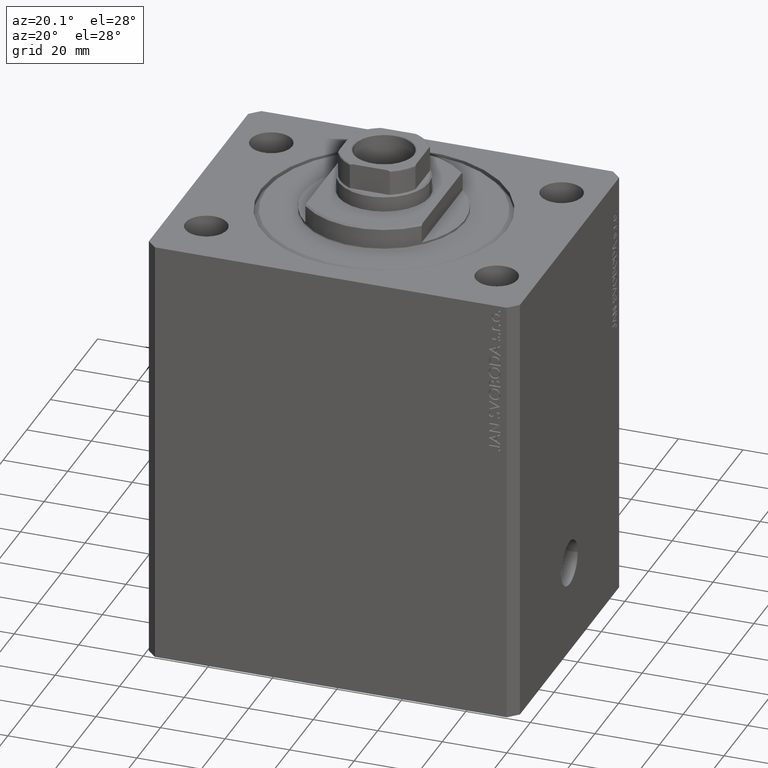
[diagram: clean part render]
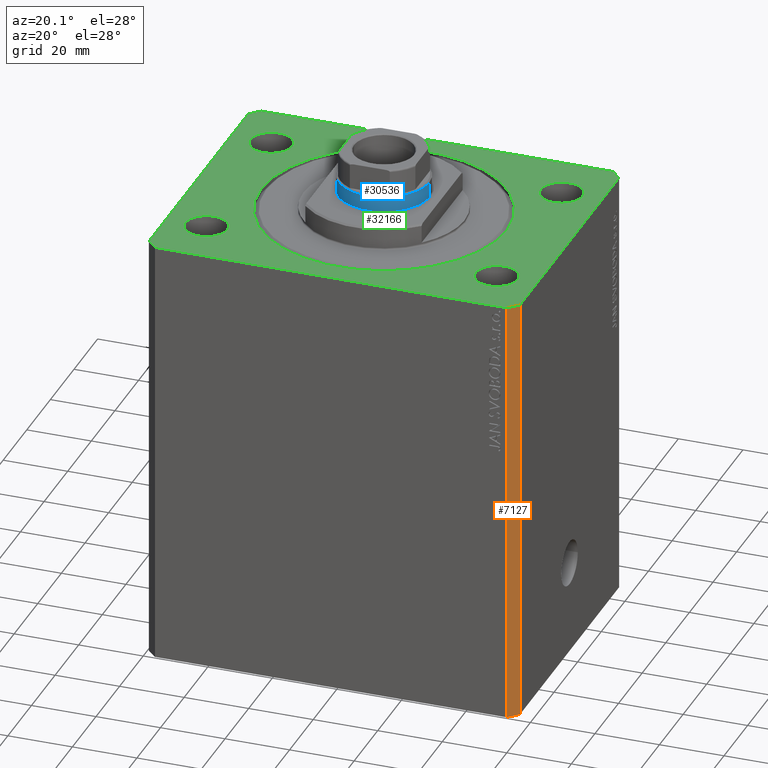
[diagram: same view with three faces highlighted in distinct colors, each labeled with its STEP entity id]
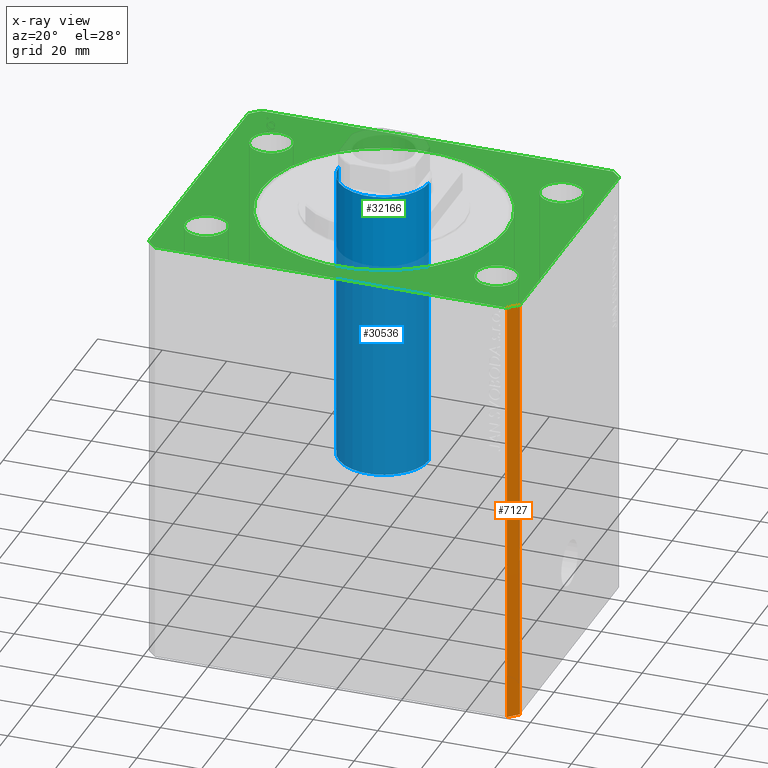
[diagram: x-ray of the same camera — body ghosted, the three highlighted faces saturated]
A machine part, auxiliary view with three faces highlighted in distinct colors.
The next image is the same camera in x-ray (body ghosted, the three faces saturated) — at least one of them is partly hidden behind the body in this view.
Their STEP definitions:

[orange] entity #7127 — the highlighted planar face has unit normal (0.7071, -0.7071, 0).
#545 = ORIENTED_EDGE ( 'NONE', *, *, #29886, .F. ) ;
#1830 = CARTESIAN_POINT ( 'NONE',  ( 54.50000000000000711, -44.99999999999998579, 0.000000000000000000 ) ) ;
#2478 = CARTESIAN_POINT ( 'NONE',  ( 57.50000000000000711, -41.99999999999998579, 0.000000000000000000 ) ) ;
#5490 = CARTESIAN_POINT ( 'NONE',  ( 54.50000000000000711, -44.99999999999998579, 0.000000000000000000 ) ) ;
#7127 = ADVANCED_FACE ( 'NONE', ( #28683 ), #17246, .T. ) ;
#7688 = CARTESIAN_POINT ( 'NONE',  ( 54.50000000000000711, -44.99999999999998579, -135.0000000000000000 ) ) ;
#8271 = CARTESIAN_POINT ( 'NONE',  ( 54.50000000000000711, -44.99999999999998579, -135.0000000000000000 ) ) ;
#11741 = LINE ( 'NONE', #33153, #19541 ) ;
#14644 = EDGE_LOOP ( 'NONE', ( #545, #35912, #28939, #43916 ) ) ;
#16948 = VECTOR ( 'NONE', #19119, 1000.000000000000000 ) ;
#17246 = PLANE ( 'NONE',  #32979 ) ;
#19119 = DIRECTION ( 'NONE',  ( 0.000000000000000000, 0.000000000000000000, 1.000000000000000000 ) ) ;
#19541 = VECTOR ( 'NONE', #39922, 1000.000000000000000 ) ;
#20402 = DIRECTION ( 'NONE',  ( 0.7071067811865483499, 0.7071067811865466846, 0.000000000000000000 ) ) ;
#20685 = CARTESIAN_POINT ( 'NONE',  ( 57.50000000000000711, -41.99999999999998579, -135.0000000000000000 ) ) ;
#24068 = EDGE_CURVE ( 'NONE', #36524, #34602, #24073, .T. ) ;
#24073 = LINE ( 'NONE', #20685, #32510 ) ;
#24397 = CARTESIAN_POINT ( 'NONE',  ( 57.50000000000000711, -41.99999999999998579, -135.0000000000000000 ) ) ;
#25963 = DIRECTION ( 'NONE',  ( 0.7071067811865483499, 0.7071067811865466846, 0.000000000000000000 ) ) ;
#26188 = LINE ( 'NONE', #1830, #39752 ) ;
#27019 = EDGE_CURVE ( 'NONE', #34727, #36524, #11741, .T. ) ;
#28683 = FACE_OUTER_BOUND ( 'NONE', #14644, .T. ) ;
#28939 = ORIENTED_EDGE ( 'NONE', *, *, #27019, .T. ) ;
#29886 = EDGE_CURVE ( 'NONE', #31287, #34602, #26188, .T. ) ;
#31046 = DIRECTION ( 'NONE',  ( 0.000000000000000000, 0.000000000000000000, 1.000000000000000000 ) ) ;
#31287 = VERTEX_POINT ( 'NONE', #5490 ) ;
#32401 = LINE ( 'NONE', #8271, #16948 ) ;
#32510 = VECTOR ( 'NONE', #31046, 1000.000000000000000 ) ;
#32979 = AXIS2_PLACEMENT_3D ( 'NONE', #7688, #42422, #20402 ) ;
#33153 = CARTESIAN_POINT ( 'NONE',  ( 54.50000000000000711, -44.99999999999998579, -135.0000000000000000 ) ) ;
#34602 = VERTEX_POINT ( 'NONE', #2478 ) ;
#34727 = VERTEX_POINT ( 'NONE', #43528 ) ;
#35912 = ORIENTED_EDGE ( 'NONE', *, *, #39696, .F. ) ;
#36524 = VERTEX_POINT ( 'NONE', #24397 ) ;
#39696 = EDGE_CURVE ( 'NONE', #34727, #31287, #32401, .T. ) ;
#39752 = VECTOR ( 'NONE', #25963, 1000.000000000000000 ) ;
#39922 = DIRECTION ( 'NONE',  ( 0.7071067811865483499, 0.7071067811865466846, 0.000000000000000000 ) ) ;
#42422 = DIRECTION ( 'NONE',  ( 0.7071067811865466846, -0.7071067811865483499, 0.000000000000000000 ) ) ;
#43528 = CARTESIAN_POINT ( 'NONE',  ( 54.50000000000000711, -44.99999999999998579, -135.0000000000000000 ) ) ;
#43916 = ORIENTED_EDGE ( 'NONE', *, *, #24068, .T. ) ;

[blue] entity #30536 — the highlighted cylindrical surface (partial cylindrical patch) has radius 14 mm, axis along (-0, -0, -1).
#970 = LINE ( 'NONE', #24439, #41708 ) ;
#1602 = AXIS2_PLACEMENT_3D ( 'NONE', #33645, #16522, #19686 ) ;
#2326 = EDGE_CURVE ( 'NONE', #24805, #34629, #15739, .T. ) ;
#4652 = ORIENTED_EDGE ( 'NONE', *, *, #11388, .T. ) ;
#5374 = ORIENTED_EDGE ( 'NONE', *, *, #11612, .F. ) ;
#6214 = VECTOR ( 'NONE', #43896, 1000.000000000000000 ) ;
#6635 = CIRCLE ( 'NONE', #24677, 14.00000000000000000 ) ;
#7336 = CARTESIAN_POINT ( 'NONE',  ( 0.000000000000000000, 0.000000000000000000, 37.00000000000000000 ) ) ;
#8855 = EDGE_LOOP ( 'NONE', ( #5374, #21610, #37917, #4652 ) ) ;
#10288 = DIRECTION ( 'NONE',  ( 1.000000000000000000, 0.000000000000000000, 0.000000000000000000 ) ) ;
#11388 = EDGE_CURVE ( 'NONE', #34629, #21620, #25149, .T. ) ;
#11612 = EDGE_CURVE ( 'NONE', #17258, #21620, #970, .T. ) ;
#13619 = AXIS2_PLACEMENT_3D ( 'NONE', #7336, #40740, #10288 ) ;
#15142 = CARTESIAN_POINT ( 'NONE',  ( 14.00000000000000000, 1.714505518806294638E-15, 37.00000000000000000 ) ) ;
#15739 = LINE ( 'NONE', #19347, #6214 ) ;
#16522 = DIRECTION ( 'NONE',  ( -0.000000000000000000, -0.000000000000000000, -1.000000000000000000 ) ) ;
#17258 = VERTEX_POINT ( 'NONE', #41661 ) ;
#19200 = CARTESIAN_POINT ( 'NONE',  ( -14.00000000000000000, 0.000000000000000000, 37.00000000000000000 ) ) ;
#19347 = CARTESIAN_POINT ( 'NONE',  ( -14.00000000000000000, 0.000000000000000000, 129.0000000000000000 ) ) ;
#19686 = DIRECTION ( 'NONE',  ( -1.000000000000000000, 0.000000000000000000, 0.000000000000000000 ) ) ;
#20024 = DIRECTION ( 'NONE',  ( 1.000000000000000000, 0.000000000000000000, 0.000000000000000000 ) ) ;
#21610 = ORIENTED_EDGE ( 'NONE', *, *, #31906, .T. ) ;
#21620 = VERTEX_POINT ( 'NONE', #15142 ) ;
#22858 = CYLINDRICAL_SURFACE ( 'NONE', #1602, 14.00000000000000000 ) ;
#24439 = CARTESIAN_POINT ( 'NONE',  ( 14.00000000000000000, 1.714505518806294638E-15, 129.0000000000000000 ) ) ;
#24677 = AXIS2_PLACEMENT_3D ( 'NONE', #25919, #39664, #20024 ) ;
#24805 = VERTEX_POINT ( 'NONE', #35164 ) ;
#25149 = CIRCLE ( 'NONE', #13619, 14.00000000000000000 ) ;
#25919 = CARTESIAN_POINT ( 'NONE',  ( 0.000000000000000000, 0.000000000000000000, 128.5000000000000284 ) ) ;
#30536 = ADVANCED_FACE ( 'NONE', ( #40628 ), #22858, .T. ) ;
#31906 = EDGE_CURVE ( 'NONE', #17258, #24805, #6635, .T. ) ;
#33645 = CARTESIAN_POINT ( 'NONE',  ( 0.000000000000000000, 0.000000000000000000, 129.0000000000000000 ) ) ;
#34629 = VERTEX_POINT ( 'NONE', #19200 ) ;
#35164 = CARTESIAN_POINT ( 'NONE',  ( -14.00000000000000000, 0.000000000000000000, 128.5000000000000284 ) ) ;
#37917 = ORIENTED_EDGE ( 'NONE', *, *, #2326, .T. ) ;
#38632 = DIRECTION ( 'NONE',  ( -0.000000000000000000, -0.000000000000000000, -1.000000000000000000 ) ) ;
#39664 = DIRECTION ( 'NONE',  ( 0.000000000000000000, 0.000000000000000000, -1.000000000000000000 ) ) ;
#40628 = FACE_OUTER_BOUND ( 'NONE', #8855, .T. ) ;
#40740 = DIRECTION ( 'NONE',  ( 0.000000000000000000, 0.000000000000000000, 1.000000000000000000 ) ) ;
#41661 = CARTESIAN_POINT ( 'NONE',  ( 14.00000000000000000, 1.714505518806294638E-15, 128.5000000000000284 ) ) ;
#41708 = VECTOR ( 'NONE', #38632, 1000.000000000000000 ) ;
#43896 = DIRECTION ( 'NONE',  ( -0.000000000000000000, -0.000000000000000000, -1.000000000000000000 ) ) ;

[green] entity #32166 — the highlighted planar face has unit normal (0, 0, 1).
#323 = LINE ( 'NONE', #17704, #32034 ) ;
#863 = EDGE_CURVE ( 'NONE', #16204, #28690, #39330, .T. ) ;
#896 = ORIENTED_EDGE ( 'NONE', *, *, #33305, .T. ) ;
#1430 = CARTESIAN_POINT ( 'NONE',  ( -38.50000000000000000, 27.49999999999999645, 0.000000000000000000 ) ) ;
#1491 = FACE_BOUND ( 'NONE', #29915, .T. ) ;
#1645 = ORIENTED_EDGE ( 'NONE', *, *, #13980, .T. ) ;
#1830 = CARTESIAN_POINT ( 'NONE',  ( 54.50000000000000711, -44.99999999999998579, 0.000000000000000000 ) ) ;
#1888 = AXIS2_PLACEMENT_3D ( 'NONE', #24478, #4158, #11160 ) ;
#1889 = VECTOR ( 'NONE', #44504, 1000.000000000000000 ) ;
#2314 = DIRECTION ( 'NONE',  ( 0.000000000000000000, 0.000000000000000000, 1.000000000000000000 ) ) ;
#2330 = DIRECTION ( 'NONE',  ( 1.000000000000000000, 0.000000000000000000, 0.000000000000000000 ) ) ;
#2377 = VERTEX_POINT ( 'NONE', #12352 ) ;
#2382 = DIRECTION ( 'NONE',  ( 0.000000000000000000, 0.000000000000000000, 1.000000000000000000 ) ) ;
#2449 = EDGE_CURVE ( 'NONE', #34641, #44119, #24216, .T. ) ;
#2478 = CARTESIAN_POINT ( 'NONE',  ( 57.50000000000000711, -41.99999999999998579, 0.000000000000000000 ) ) ;
#2808 = CARTESIAN_POINT ( 'NONE',  ( 44.99999999999998579, -27.50000000000000355, 0.000000000000000000 ) ) ;
#2881 = EDGE_CURVE ( 'NONE', #15633, #31287, #30413, .T. ) ;
#2882 = EDGE_CURVE ( 'NONE', #25951, #16665, #42959, .T. ) ;
#3424 = ORIENTED_EDGE ( 'NONE', *, *, #4514, .T. ) ;
#3679 = AXIS2_PLACEMENT_3D ( 'NONE', #22287, #36037, #43025 ) ;
#4150 = DIRECTION ( 'NONE',  ( 1.000000000000000000, 0.000000000000000000, 0.000000000000000000 ) ) ;
#4158 = DIRECTION ( 'NONE',  ( 0.000000000000000000, 0.000000000000000000, 1.000000000000000000 ) ) ;
#4435 = CARTESIAN_POINT ( 'NONE',  ( 38.50000000000000000, 27.49999999999999289, 0.000000000000000000 ) ) ;
#4514 = EDGE_CURVE ( 'NONE', #29025, #15633, #20826, .T. ) ;
#4927 = ORIENTED_EDGE ( 'NONE', *, *, #20595, .F. ) ;
#5385 = EDGE_CURVE ( 'NONE', #25424, #33056, #17109, .T. ) ;
#5445 = CARTESIAN_POINT ( 'NONE',  ( -51.49999999999998579, -27.50000000000000355, 0.000000000000000000 ) ) ;
#5490 = CARTESIAN_POINT ( 'NONE',  ( 54.50000000000000711, -44.99999999999998579, 0.000000000000000000 ) ) ;
#5540 = CARTESIAN_POINT ( 'NONE',  ( 51.49999999999998579, -27.50000000000000355, 0.000000000000000000 ) ) ;
#5760 = DIRECTION ( 'NONE',  ( 0.000000000000000000, 0.000000000000000000, 1.000000000000000000 ) ) ;
#5768 = FACE_BOUND ( 'NONE', #25595, .T. ) ;
#5942 = AXIS2_PLACEMENT_3D ( 'NONE', #8423, #12269, #2330 ) ;
#5991 = EDGE_CURVE ( 'NONE', #16665, #25951, #35086, .T. ) ;
#6638 = DIRECTION ( 'NONE',  ( 0.000000000000000000, 0.000000000000000000, 1.000000000000000000 ) ) ;
#6840 = DIRECTION ( 'NONE',  ( 0.7071067811865491270, -0.7071067811865459074, 0.000000000000000000 ) ) ;
#7314 = DIRECTION ( 'NONE',  ( 0.000000000000000000, 0.000000000000000000, 1.000000000000000000 ) ) ;
#7776 = VERTEX_POINT ( 'NONE', #32569 ) ;
#7916 = CARTESIAN_POINT ( 'NONE',  ( -54.49999999999999289, 45.00000000000000000, 0.000000000000000000 ) ) ;
#8423 = CARTESIAN_POINT ( 'NONE',  ( 0.000000000000000000, 0.000000000000000000, 0.000000000000000000 ) ) ;
#8519 = ORIENTED_EDGE ( 'NONE', *, *, #23468, .T. ) ;
#9055 = AXIS2_PLACEMENT_3D ( 'NONE', #31207, #14523, #34814 ) ;
#9344 = LINE ( 'NONE', #34350, #1889 ) ;
#9363 = PLANE ( 'NONE',  #36217 ) ;
#9544 = CARTESIAN_POINT ( 'NONE',  ( 57.50000000000055422, 41.99999999999997868, 0.000000000000000000 ) ) ;
#10200 = CARTESIAN_POINT ( 'NONE',  ( -51.50000000000000000, 27.49999999999999645, 0.000000000000000000 ) ) ;
#10684 = ORIENTED_EDGE ( 'NONE', *, *, #5385, .F. ) ;
#10857 = LINE ( 'NONE', #7916, #43296 ) ;
#10875 = ORIENTED_EDGE ( 'NONE', *, *, #2882, .F. ) ;
#11160 = DIRECTION ( 'NONE',  ( 1.000000000000000000, 0.000000000000000000, 0.000000000000000000 ) ) ;
#11168 = AXIS2_PLACEMENT_3D ( 'NONE', #2808, #6638, #41138 ) ;
#12269 = DIRECTION ( 'NONE',  ( 0.000000000000000000, 0.000000000000000000, 1.000000000000000000 ) ) ;
#12352 = CARTESIAN_POINT ( 'NONE',  ( 38.49999999999998579, -27.50000000000000355, 0.000000000000000000 ) ) ;
#12540 = VERTEX_POINT ( 'NONE', #9544 ) ;
#12805 = AXIS2_PLACEMENT_3D ( 'NONE', #22915, #5760, #42360 ) ;
#13243 = CARTESIAN_POINT ( 'NONE',  ( -57.50000000000000711, -42.00000000000000711, 0.000000000000000000 ) ) ;
#13980 = EDGE_CURVE ( 'NONE', #34602, #12540, #17616, .T. ) ;
#14027 = DIRECTION ( 'NONE',  ( -0.7071067811865483499, -0.7071067811865466846, 0.000000000000000000 ) ) ;
#14091 = CARTESIAN_POINT ( 'NONE',  ( 38.00000000000000000, 0.000000000000000000, 0.000000000000000000 ) ) ;
#14523 = DIRECTION ( 'NONE',  ( 0.000000000000000000, 0.000000000000000000, 1.000000000000000000 ) ) ;
#15152 = EDGE_CURVE ( 'NONE', #44119, #34641, #41704, .T. ) ;
#15633 = VERTEX_POINT ( 'NONE', #18496 ) ;
#16204 = VERTEX_POINT ( 'NONE', #10200 ) ;
#16249 = CARTESIAN_POINT ( 'NONE',  ( -38.49999999999998579, -27.50000000000000355, 0.000000000000000000 ) ) ;
#16629 = AXIS2_PLACEMENT_3D ( 'NONE', #25140, #7314, #4150 ) ;
#16665 = VERTEX_POINT ( 'NONE', #4435 ) ;
#16682 = VERTEX_POINT ( 'NONE', #18667 ) ;
#16940 = CIRCLE ( 'NONE', #11168, 6.499999999999999112 ) ;
#17109 = CIRCLE ( 'NONE', #29356, 38.00000000000000000 ) ;
#17143 = ORIENTED_EDGE ( 'NONE', *, *, #34240, .F. ) ;
#17351 = ORIENTED_EDGE ( 'NONE', *, *, #15152, .F. ) ;
#17616 = LINE ( 'NONE', #27984, #41772 ) ;
#17704 = CARTESIAN_POINT ( 'NONE',  ( 57.50000000000055422, 41.99999999999997868, 0.000000000000000000 ) ) ;
#17791 = VECTOR ( 'NONE', #29774, 1000.000000000000000 ) ;
#18289 = DIRECTION ( 'NONE',  ( 6.443258625056715108E-15, 1.000000000000000000, 0.000000000000000000 ) ) ;
#18496 = CARTESIAN_POINT ( 'NONE',  ( -54.50000000000000711, -45.00000000000000000, 0.000000000000000000 ) ) ;
#18667 = CARTESIAN_POINT ( 'NONE',  ( 54.50000000000059686, 45.00000000000002842, 0.000000000000000000 ) ) ;
#19842 = DIRECTION ( 'NONE',  ( 0.000000000000000000, 0.000000000000000000, 1.000000000000000000 ) ) ;
#20381 = DIRECTION ( 'NONE',  ( 0.000000000000000000, 0.000000000000000000, 1.000000000000000000 ) ) ;
#20595 = EDGE_CURVE ( 'NONE', #28690, #16204, #23166, .T. ) ;
#20637 = AXIS2_PLACEMENT_3D ( 'NONE', #43738, #19842, #36322 ) ;
#20698 = ORIENTED_EDGE ( 'NONE', *, *, #5991, .F. ) ;
#20826 = LINE ( 'NONE', #38186, #24284 ) ;
#21863 = AXIS2_PLACEMENT_3D ( 'NONE', #23336, #20381, #37295 ) ;
#22124 = ORIENTED_EDGE ( 'NONE', *, *, #2881, .T. ) ;
#22287 = CARTESIAN_POINT ( 'NONE',  ( -45.00000000000000000, 27.49999999999999645, 0.000000000000000000 ) ) ;
#22408 = CARTESIAN_POINT ( 'NONE',  ( 0.000000000000000000, 0.000000000000000000, 0.000000000000000000 ) ) ;
#22915 = CARTESIAN_POINT ( 'NONE',  ( 45.00000000000000000, 27.49999999999999289, 0.000000000000000000 ) ) ;
#23166 = CIRCLE ( 'NONE', #3679, 6.499999999999999112 ) ;
#23336 = CARTESIAN_POINT ( 'NONE',  ( 44.99999999999998579, -27.50000000000000355, 0.000000000000000000 ) ) ;
#23468 = EDGE_CURVE ( 'NONE', #7776, #32710, #10857, .T. ) ;
#23759 = LINE ( 'NONE', #34116, #23965 ) ;
#23965 = VECTOR ( 'NONE', #38390, 1000.000000000000000 ) ;
#24216 = CIRCLE ( 'NONE', #1888, 6.499999999999999112 ) ;
#24284 = VECTOR ( 'NONE', #6840, 1000.000000000000114 ) ;
#24478 = CARTESIAN_POINT ( 'NONE',  ( -44.99999999999998579, -27.50000000000000355, 0.000000000000000000 ) ) ;
#25140 = CARTESIAN_POINT ( 'NONE',  ( -44.99999999999998579, -27.50000000000000355, 0.000000000000000000 ) ) ;
#25395 = CIRCLE ( 'NONE', #5942, 38.00000000000000000 ) ;
#25424 = VERTEX_POINT ( 'NONE', #14091 ) ;
#25595 = EDGE_LOOP ( 'NONE', ( #31977, #17351 ) ) ;
#25951 = VERTEX_POINT ( 'NONE', #38054 ) ;
#25963 = DIRECTION ( 'NONE',  ( 0.7071067811865483499, 0.7071067811865466846, 0.000000000000000000 ) ) ;
#26188 = LINE ( 'NONE', #1830, #39752 ) ;
#26298 = FACE_BOUND ( 'NONE', #32996, .T. ) ;
#26517 = FACE_OUTER_BOUND ( 'NONE', #36422, .T. ) ;
#27851 = DIRECTION ( 'NONE',  ( -0.7071067811865369146, 0.7071067811865581199, 0.000000000000000000 ) ) ;
#27984 = CARTESIAN_POINT ( 'NONE',  ( 57.50000000000000711, -41.99999999999998579, 0.000000000000000000 ) ) ;
#28307 = ORIENTED_EDGE ( 'NONE', *, *, #863, .F. ) ;
#28339 = CIRCLE ( 'NONE', #21863, 6.499999999999999112 ) ;
#28690 = VERTEX_POINT ( 'NONE', #1430 ) ;
#29016 = DIRECTION ( 'NONE',  ( 1.000000000000000000, 0.000000000000000000, -0.000000000000000000 ) ) ;
#29025 = VERTEX_POINT ( 'NONE', #13243 ) ;
#29356 = AXIS2_PLACEMENT_3D ( 'NONE', #22408, #2314, #35699 ) ;
#29434 = ORIENTED_EDGE ( 'NONE', *, *, #43589, .F. ) ;
#29774 = DIRECTION ( 'NONE',  ( 1.000000000000000000, 1.273191542001326317E-16, 0.000000000000000000 ) ) ;
#29886 = EDGE_CURVE ( 'NONE', #31287, #34602, #26188, .T. ) ;
#29915 = EDGE_LOOP ( 'NONE', ( #4927, #28307 ) ) ;
#30413 = LINE ( 'NONE', #39919, #17791 ) ;
#31207 = CARTESIAN_POINT ( 'NONE',  ( -45.00000000000000000, 27.49999999999999645, 0.000000000000000000 ) ) ;
#31287 = VERTEX_POINT ( 'NONE', #5490 ) ;
#31752 = ORIENTED_EDGE ( 'NONE', *, *, #29886, .T. ) ;
#31977 = ORIENTED_EDGE ( 'NONE', *, *, #2449, .F. ) ;
#32034 = VECTOR ( 'NONE', #27851, 1000.000000000000000 ) ;
#32125 = CARTESIAN_POINT ( 'NONE',  ( -38.00000000000000000, 4.653657836759941941E-15, 0.000000000000000000 ) ) ;
#32166 = ADVANCED_FACE ( 'NONE', ( #32837, #5768, #32615, #26298, #1491, #26517 ), #9363, .T. ) ;
#32486 = EDGE_CURVE ( 'NONE', #33056, #25424, #25395, .T. ) ;
#32569 = CARTESIAN_POINT ( 'NONE',  ( -54.49999999999999289, 45.00000000000000000, 0.000000000000000000 ) ) ;
#32615 = FACE_BOUND ( 'NONE', #38791, .T. ) ;
#32710 = VERTEX_POINT ( 'NONE', #38994 ) ;
#32837 = FACE_BOUND ( 'NONE', #35669, .T. ) ;
#32996 = EDGE_LOOP ( 'NONE', ( #10875, #20698 ) ) ;
#33056 = VERTEX_POINT ( 'NONE', #32125 ) ;
#33305 = EDGE_CURVE ( 'NONE', #16682, #7776, #23759, .T. ) ;
#34116 = CARTESIAN_POINT ( 'NONE',  ( 54.50000000000059686, 45.00000000000002842, 0.000000000000000000 ) ) ;
#34240 = EDGE_CURVE ( 'NONE', #2377, #35406, #28339, .T. ) ;
#34350 = CARTESIAN_POINT ( 'NONE',  ( -57.49999999999998579, 42.00000000000000711, 0.000000000000000000 ) ) ;
#34602 = VERTEX_POINT ( 'NONE', #2478 ) ;
#34641 = VERTEX_POINT ( 'NONE', #16249 ) ;
#34814 = DIRECTION ( 'NONE',  ( 1.000000000000000000, 0.000000000000000000, 0.000000000000000000 ) ) ;
#35086 = CIRCLE ( 'NONE', #12805, 6.499999999999999112 ) ;
#35406 = VERTEX_POINT ( 'NONE', #5540 ) ;
#35669 = EDGE_LOOP ( 'NONE', ( #10684, #41042 ) ) ;
#35699 = DIRECTION ( 'NONE',  ( 1.000000000000000000, 0.000000000000000000, 0.000000000000000000 ) ) ;
#36037 = DIRECTION ( 'NONE',  ( 0.000000000000000000, 0.000000000000000000, 1.000000000000000000 ) ) ;
#36147 = ORIENTED_EDGE ( 'NONE', *, *, #42087, .T. ) ;
#36217 = AXIS2_PLACEMENT_3D ( 'NONE', #36231, #2382, #29016 ) ;
#36231 = CARTESIAN_POINT ( 'NONE',  ( 0.000000000000000000, 0.000000000000000000, 0.000000000000000000 ) ) ;
#36322 = DIRECTION ( 'NONE',  ( 1.000000000000000000, 0.000000000000000000, 0.000000000000000000 ) ) ;
#36422 = EDGE_LOOP ( 'NONE', ( #896, #8519, #36147, #3424, #22124, #31752, #1645, #37780 ) ) ;
#37295 = DIRECTION ( 'NONE',  ( 1.000000000000000000, 0.000000000000000000, 0.000000000000000000 ) ) ;
#37780 = ORIENTED_EDGE ( 'NONE', *, *, #38254, .T. ) ;
#38054 = CARTESIAN_POINT ( 'NONE',  ( 51.50000000000000000, 27.49999999999999289, 0.000000000000000000 ) ) ;
#38186 = CARTESIAN_POINT ( 'NONE',  ( -57.50000000000000711, -42.00000000000000711, 0.000000000000000000 ) ) ;
#38254 = EDGE_CURVE ( 'NONE', #12540, #16682, #323, .T. ) ;
#38390 = DIRECTION ( 'NONE',  ( -1.000000000000000000, -2.546383084002638829E-16, 0.000000000000000000 ) ) ;
#38791 = EDGE_LOOP ( 'NONE', ( #29434, #17143 ) ) ;
#38994 = CARTESIAN_POINT ( 'NONE',  ( -57.49999999999998579, 42.00000000000000711, 0.000000000000000000 ) ) ;
#39330 = CIRCLE ( 'NONE', #9055, 6.499999999999999112 ) ;
#39752 = VECTOR ( 'NONE', #25963, 1000.000000000000000 ) ;
#39919 = CARTESIAN_POINT ( 'NONE',  ( -54.50000000000000711, -45.00000000000000000, 0.000000000000000000 ) ) ;
#41042 = ORIENTED_EDGE ( 'NONE', *, *, #32486, .F. ) ;
#41138 = DIRECTION ( 'NONE',  ( 1.000000000000000000, 0.000000000000000000, 0.000000000000000000 ) ) ;
#41704 = CIRCLE ( 'NONE', #16629, 6.499999999999999112 ) ;
#41772 = VECTOR ( 'NONE', #18289, 1000.000000000000000 ) ;
#42087 = EDGE_CURVE ( 'NONE', #32710, #29025, #9344, .T. ) ;
#42360 = DIRECTION ( 'NONE',  ( 1.000000000000000000, 0.000000000000000000, 0.000000000000000000 ) ) ;
#42959 = CIRCLE ( 'NONE', #20637, 6.499999999999999112 ) ;
#43025 = DIRECTION ( 'NONE',  ( 1.000000000000000000, 0.000000000000000000, 0.000000000000000000 ) ) ;
#43296 = VECTOR ( 'NONE', #14027, 1000.000000000000000 ) ;
#43589 = EDGE_CURVE ( 'NONE', #35406, #2377, #16940, .T. ) ;
#43738 = CARTESIAN_POINT ( 'NONE',  ( 45.00000000000000000, 27.49999999999999289, 0.000000000000000000 ) ) ;
#44119 = VERTEX_POINT ( 'NONE', #5445 ) ;
#44504 = DIRECTION ( 'NONE',  ( -2.478176394252581141E-16, -1.000000000000000000, 0.000000000000000000 ) ) ;